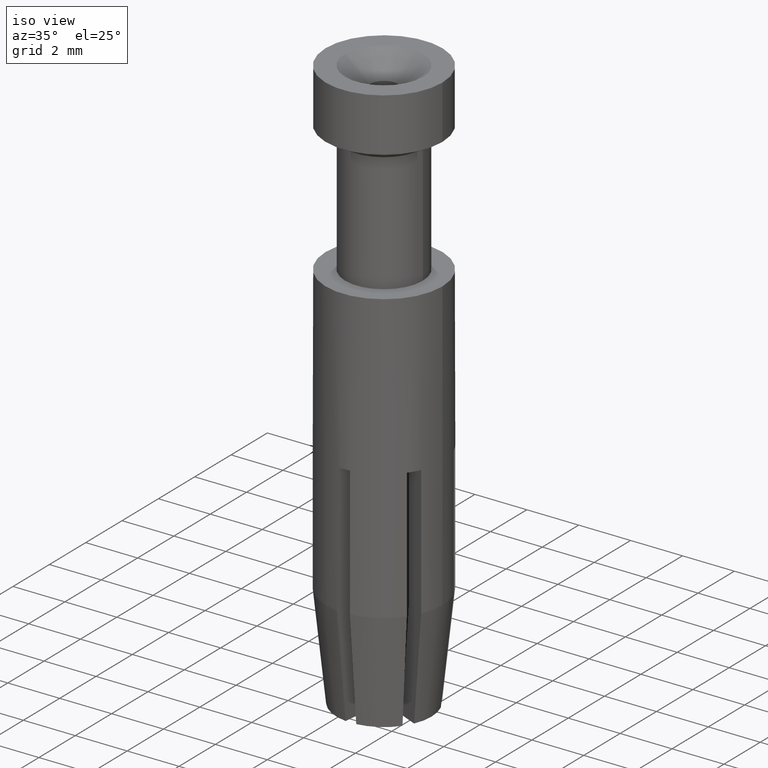
[diagram: clean part render]
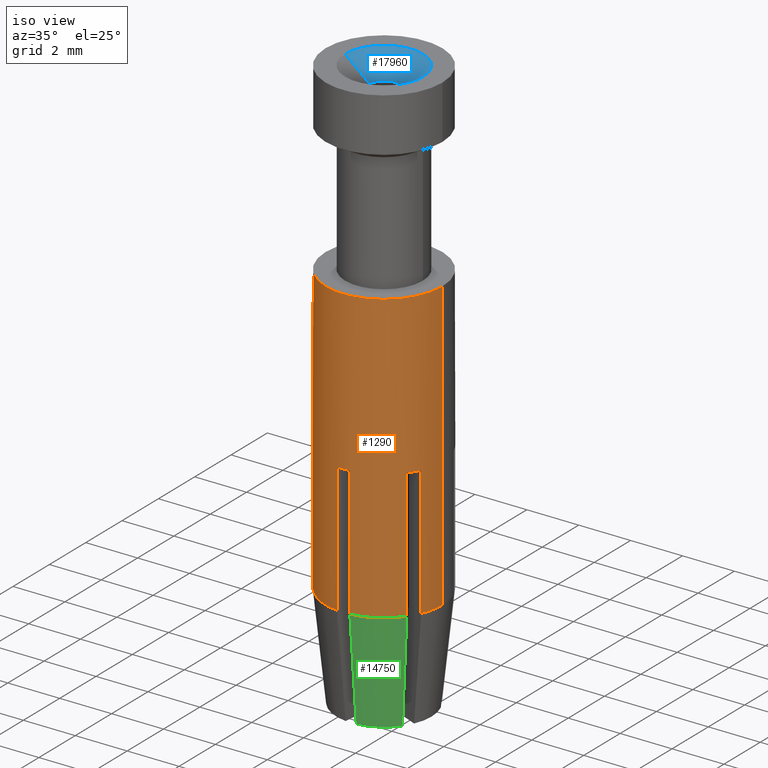
[diagram: same view with three faces highlighted in distinct colors, each labeled with its STEP entity id]
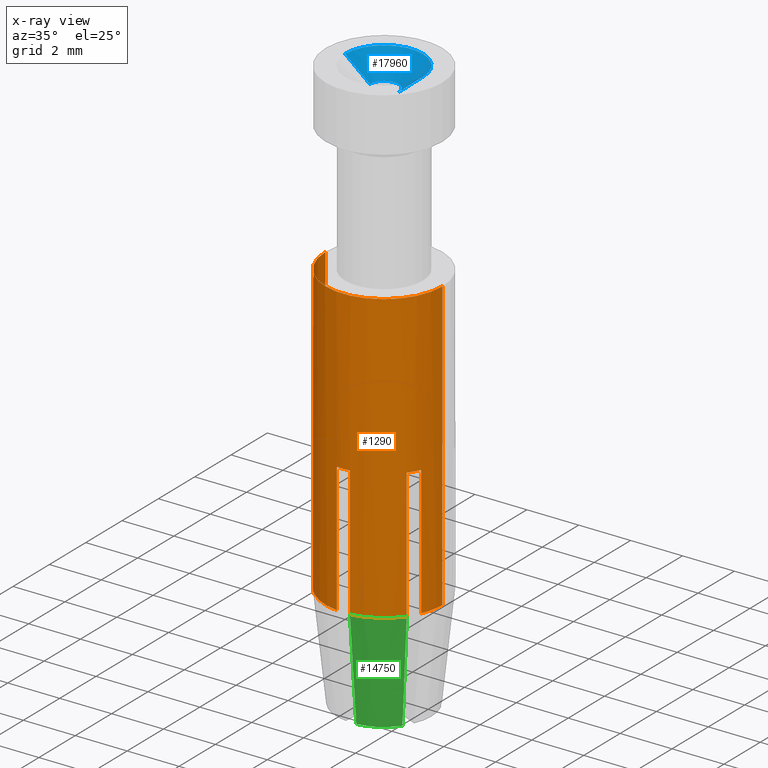
[diagram: x-ray of the same camera — body ghosted, the three highlighted faces saturated]
A machine part, iso view with three faces highlighted in distinct colors.
The next image is the same camera in x-ray (body ghosted, the three faces saturated) — at least one of them is partly hidden behind the body in this view.
Their STEP definitions:

[orange] entity #1290 — the highlighted cylindrical surface (partial cylindrical patch) has radius 2.25 mm, axis along (0, -0, 1).
#10=CARTESIAN_POINT('',(30.750556,42.17405,27.5));
#20=DIRECTION('',(0.,0.,-1.));
#30=DIRECTION('',(-1.,0.,0.));
#40=AXIS2_PLACEMENT_3D('',#10,#20,#30);
#50=CYLINDRICAL_SURFACE('',#40,2.25);
#60=CARTESIAN_POINT('',(28.500556,42.17405,27.5));
#70=DIRECTION('',(0.,0.,-1.));
#80=VECTOR('',#70,1.);
#90=LINE('',#60,#80);
#100=CARTESIAN_POINT('',(28.500556,42.17405,23.4999999999999));
#110=VERTEX_POINT('',#100);
#120=CARTESIAN_POINT('',(28.500556,42.17405,12.4));
#130=VERTEX_POINT('',#120);
#140=EDGE_CURVE('',#110,#130,#90,.T.);
#150=ORIENTED_EDGE('',*,*,#140,.T.);
#160=CARTESIAN_POINT('',(30.750556,42.17405,23.4999999999999));
#170=DIRECTION('',(0.,0.,-1.));
#180=DIRECTION('',(-1.,0.,0.));
#190=AXIS2_PLACEMENT_3D('',#160,#170,#180);
#200=CIRCLE('',#190,2.25);
#210=CARTESIAN_POINT('',(28.6890643268963,41.2725223621962,23.5));
#220=VERTEX_POINT('',#210);
#230=EDGE_CURVE('',#220,#110,#200,.T.);
#240=ORIENTED_EDGE('',*,*,#230,.T.);
#250=CARTESIAN_POINT('',(28.6890643268963,41.2725223621962,27.5));
#260=DIRECTION('',(0.,0.,-1.));
#270=VECTOR('',#260,1.);
#280=LINE('',#250,#270);
#290=CARTESIAN_POINT('',(28.6890643268963,41.2725223621962,18.5));
#300=VERTEX_POINT('',#290);
#310=EDGE_CURVE('',#220,#300,#280,.T.);
#320=ORIENTED_EDGE('',*,*,#310,.F.);
#330=CARTESIAN_POINT('',(30.750556,42.17405,18.5));
#340=DIRECTION('',(0.,0.,-1.));
#350=DIRECTION('',(-1.,0.,0.));
#360=AXIS2_PLACEMENT_3D('',#330,#340,#350);
#370=CIRCLE('',#360,2.25);
#380=CARTESIAN_POINT('',(28.9390643268963,40.839509660304,18.5));
#390=VERTEX_POINT('',#380);
#400=EDGE_CURVE('',#390,#300,#370,.T.);
#410=ORIENTED_EDGE('',*,*,#400,.T.);
#420=CARTESIAN_POINT('',(28.9390643268963,40.839509660304,27.5));
#430=DIRECTION('',(0.,0.,-1.));
#440=VECTOR('',#430,1.);
#450=LINE('',#420,#440);
#460=CARTESIAN_POINT('',(28.9390643268963,40.839509660304,
23.4999999999999));
#470=VERTEX_POINT('',#460);
#480=EDGE_CURVE('',#470,#390,#450,.T.);
#490=ORIENTED_EDGE('',*,*,#480,.T.);
#500=CARTESIAN_POINT('',(30.500556,39.9379820225002,23.5));
#510=VERTEX_POINT('',#500);
#520=EDGE_CURVE('',#510,#470,#200,.T.);
#530=ORIENTED_EDGE('',*,*,#520,.T.);
#540=CARTESIAN_POINT('',(30.500556,39.9379820225002,27.5));
#550=DIRECTION('',(0.,0.,-1.));
#560=VECTOR('',#550,1.);
#570=LINE('',#540,#560);
#580=CARTESIAN_POINT('',(30.500556,39.9379820225002,18.5));
#590=VERTEX_POINT('',#580);
#600=EDGE_CURVE('',#510,#590,#570,.T.);
#610=ORIENTED_EDGE('',*,*,#600,.F.);
#620=CARTESIAN_POINT('',(30.750556,42.17405,18.5));
#630=DIRECTION('',(0.,0.,-1.));
#640=DIRECTION('',(-1.,0.,0.));
#650=AXIS2_PLACEMENT_3D('',#620,#630,#640);
#660=CIRCLE('',#650,2.25);
#670=CARTESIAN_POINT('',(31.000556,39.9379820225002,18.5));
#680=VERTEX_POINT('',#670);
#690=EDGE_CURVE('',#680,#590,#660,.T.);
#700=ORIENTED_EDGE('',*,*,#690,.T.);
#710=CARTESIAN_POINT('',(31.000556,39.9379820225002,27.5));
#720=DIRECTION('',(0.,0.,-1.));
#730=VECTOR('',#720,1.);
#740=LINE('',#710,#730);
#750=CARTESIAN_POINT('',(31.000556,39.9379820225002,23.4999999999999));
#760=VERTEX_POINT('',#750);
#770=EDGE_CURVE('',#760,#680,#740,.T.);
#780=ORIENTED_EDGE('',*,*,#770,.T.);
#790=CARTESIAN_POINT('',(32.5620476731037,40.839509660304,23.5));
#800=VERTEX_POINT('',#790);
#810=EDGE_CURVE('',#800,#760,#200,.T.);
#820=ORIENTED_EDGE('',*,*,#810,.T.);
#830=CARTESIAN_POINT('',(32.5620476731037,40.839509660304,27.5));
#840=DIRECTION('',(0.,0.,-1.));
#850=VECTOR('',#840,1.);
#860=LINE('',#830,#850);
#870=CARTESIAN_POINT('',(32.5620476731037,40.839509660304,18.5));
#880=VERTEX_POINT('',#870);
#890=EDGE_CURVE('',#800,#880,#860,.T.);
#900=ORIENTED_EDGE('',*,*,#890,.F.);
#910=CARTESIAN_POINT('',(30.750556,42.17405,18.5));
#920=DIRECTION('',(0.,0.,-1.));
#930=DIRECTION('',(-1.,0.,0.));
#940=AXIS2_PLACEMENT_3D('',#910,#920,#930);
#950=CIRCLE('',#940,2.25);
#960=CARTESIAN_POINT('',(32.8120476731037,41.2725223621962,18.5));
#970=VERTEX_POINT('',#960);
#980=EDGE_CURVE('',#970,#880,#950,.T.);
#990=ORIENTED_EDGE('',*,*,#980,.T.);
#1000=CARTESIAN_POINT('',(32.8120476731037,41.2725223621962,27.5));
#1010=DIRECTION('',(0.,0.,-1.));
#1020=VECTOR('',#1010,1.);
#1030=LINE('',#1000,#1020);
#1040=CARTESIAN_POINT('',(32.8120476731037,41.2725223621962,
23.4999999999999));
#1050=VERTEX_POINT('',#1040);
#1060=EDGE_CURVE('',#1050,#970,#1030,.T.);
#1070=ORIENTED_EDGE('',*,*,#1060,.T.);
#1080=CARTESIAN_POINT('',(33.000556,42.17405,23.4999999999999));
#1090=VERTEX_POINT('',#1080);
#1100=EDGE_CURVE('',#1090,#1050,#200,.T.);
#1110=ORIENTED_EDGE('',*,*,#1100,.T.);
#1120=CARTESIAN_POINT('',(33.000556,42.17405,27.5));
#1130=DIRECTION('',(0.,0.,-1.));
#1140=VECTOR('',#1130,1.);
#1150=LINE('',#1120,#1140);
#1160=CARTESIAN_POINT('',(33.000556,42.17405,12.4));
#1170=VERTEX_POINT('',#1160);
#1180=EDGE_CURVE('',#1090,#1170,#1150,.T.);
#1190=ORIENTED_EDGE('',*,*,#1180,.F.);
#1200=CARTESIAN_POINT('',(30.750556,42.17405,12.4));
#1210=DIRECTION('',(0.,0.,-1.));
#1220=DIRECTION('',(-1.,0.,0.));
#1230=AXIS2_PLACEMENT_3D('',#1200,#1210,#1220);
#1240=CIRCLE('',#1230,2.25);
#1250=EDGE_CURVE('',#1170,#130,#1240,.T.);
#1260=ORIENTED_EDGE('',*,*,#1250,.F.);
#1270=EDGE_LOOP('',(#1260,#1190,#1110,#1070,#990,#900,#820,#780,#700,
#610,#530,#490,#410,#320,#240,#150));
#1280=FACE_OUTER_BOUND('',#1270,.T.);
#1290=ADVANCED_FACE('',(#1280),#50,.T.);

[blue] entity #17960 — the highlighted conical surface has half-angle 50 deg.
#4880=CARTESIAN_POINT('',(30.750556,42.17405,5.3));
#4890=DIRECTION('',(8.85536848875934E-16,7.2248511598576E-16,-1.));
#4900=DIRECTION('',(-1.,2.49957689282286E-32,-8.85536848875934E-16));
#4910=AXIS2_PLACEMENT_3D('',#4880,#4890,#4900);
#4920=CIRCLE('',#4910,1.5);
#4930=CARTESIAN_POINT('',(29.250556,42.17405,5.3));
#4940=VERTEX_POINT('',#4930);
#4950=CARTESIAN_POINT('',(32.250556,42.17405,5.3));
#4960=VERTEX_POINT('',#4950);
#4970=EDGE_CURVE('',#4940,#4960,#4920,.T.);
#16360=CARTESIAN_POINT('',(30.200556,42.17405,6.09714464961842));
#16370=VERTEX_POINT('',#16360);
#16400=CARTESIAN_POINT('',(30.750556,42.17405,6.09714464961842));
#16410=DIRECTION('',(8.85536848875934E-16,7.2248511598576E-16,-1.));
#16420=DIRECTION('',(-1.,6.39787192969794E-31,-8.85536848875934E-16));
#16430=AXIS2_PLACEMENT_3D('',#16400,#16410,#16420);
#16440=CIRCLE('',#16430,0.55);
#16450=CARTESIAN_POINT('',(31.300556,42.17405,6.09714464961842));
#16460=VERTEX_POINT('',#16450);
#16710=CARTESIAN_POINT('',(29.250556,42.17405,5.3));
#16720=DIRECTION('',(-0.766044443118978,0.,-0.64278760968654));
#16730=VECTOR('',#16720,1.95811093399842);
#16740=LINE('',#16710,#16730);
#16750=EDGE_CURVE('',#16370,#4940,#16740,.T.);
#16780=CARTESIAN_POINT('',(32.250556,42.17405,5.3));
#16790=DIRECTION('',(0.766044443118978,0.,-0.642787609686539));
#16800=VECTOR('',#16790,1.95811093399842);
#16810=LINE('',#16780,#16800);
#16820=EDGE_CURVE('',#16460,#4960,#16810,.T.);
#17720=EDGE_CURVE('',#16370,#16460,#16440,.T.);
#17850=CARTESIAN_POINT('',(30.750556,42.17405,5.3));
#17860=DIRECTION('',(0.,0.,-1.));
#17870=DIRECTION('',(-1.,2.49957689282286E-32,-8.85536848875934E-16));
#17880=AXIS2_PLACEMENT_3D('',#17850,#17860,#17870);
#17890=CONICAL_SURFACE('',#17880,1.5,0.872664625997165);
#17900=ORIENTED_EDGE('',*,*,#17720,.F.);
#17910=ORIENTED_EDGE('',*,*,#16820,.F.);
#17920=ORIENTED_EDGE('',*,*,#4970,.T.);
#17930=ORIENTED_EDGE('',*,*,#16750,.T.);
#17940=EDGE_LOOP('',(#17930,#17920,#17910,#17900));
#17950=FACE_OUTER_BOUND('',#17940,.T.);
#17960=ADVANCED_FACE('',(#17950),#17890,.F.);

[green] entity #14750 — the highlighted conical surface has half-angle 6 deg.
#160=CARTESIAN_POINT('',(30.750556,42.17405,23.4999999999999));
#170=DIRECTION('',(0.,0.,-1.));
#180=DIRECTION('',(-1.,0.,0.));
#190=AXIS2_PLACEMENT_3D('',#160,#170,#180);
#200=CIRCLE('',#190,2.25);
#460=CARTESIAN_POINT('',(28.9390643268963,40.839509660304,
23.4999999999999));
#470=VERTEX_POINT('',#460);
#500=CARTESIAN_POINT('',(30.500556,39.9379820225002,23.5));
#510=VERTEX_POINT('',#500);
#520=EDGE_CURVE('',#510,#470,#200,.T.);
#4590=CARTESIAN_POINT('',(30.4578460718389,39.555972811771,
19.8427795989566));
#4600=DIRECTION('',(-0.0116142736964059,-0.103881221977806,
-0.994521895368273));
#4610=VECTOR('',#4600,25.2026029188254);
#4620=LINE('',#4590,#4610);
#4630=CARTESIAN_POINT('',(30.5472689934514,40.3557957376596,27.5));
#4640=VERTEX_POINT('',#4630);
#4650=EDGE_CURVE('',#4640,#510,#4620,.T.);
#7640=CARTESIAN_POINT('',(29.2775451215482,41.0888711568995,27.5));
#7650=VERTEX_POINT('',#7640);
#7680=CARTESIAN_POINT('',(28.6295896100057,40.6115171721581,
19.8427795989566));
#7690=DIRECTION('',(-0.0841566403607472,-0.0619988670564958,
-0.994521895368273));
#7700=VECTOR('',#7690,25.2026029188254);
#7710=LINE('',#7680,#7700);
#7720=EDGE_CURVE('',#7650,#470,#7710,.T.);
#12940=CARTESIAN_POINT('',(30.750556,42.17405,27.5));
#12950=DIRECTION('',(0.,0.,-1.));
#12960=DIRECTION('',(-1.,0.,0.));
#12970=AXIS2_PLACEMENT_3D('',#12940,#12950,#12960);
#12980=CIRCLE('',#12970,1.82958305893729);
#13130=CARTESIAN_POINT('',(30.750556,42.17405,19.8427795989566));
#13140=DIRECTION('',(0.,0.,-1.));
#13150=DIRECTION('',(-1.,0.,-0.));
#13160=AXIS2_PLACEMENT_3D('',#13130,#13140,#13150);
#13170=CONICAL_SURFACE('',#13160,2.6343893534497,0.10471975511966);
#14680=EDGE_CURVE('',#4640,#7650,#12980,.T.);
#14690=ORIENTED_EDGE('',*,*,#14680,.T.);
#14700=ORIENTED_EDGE('',*,*,#4650,.F.);
#14710=ORIENTED_EDGE('',*,*,#520,.F.);
#14720=ORIENTED_EDGE('',*,*,#7720,.T.);
#14730=EDGE_LOOP('',(#14720,#14710,#14700,#14690));
#14740=FACE_OUTER_BOUND('',#14730,.T.);
#14750=ADVANCED_FACE('',(#14740),#13170,.T.);